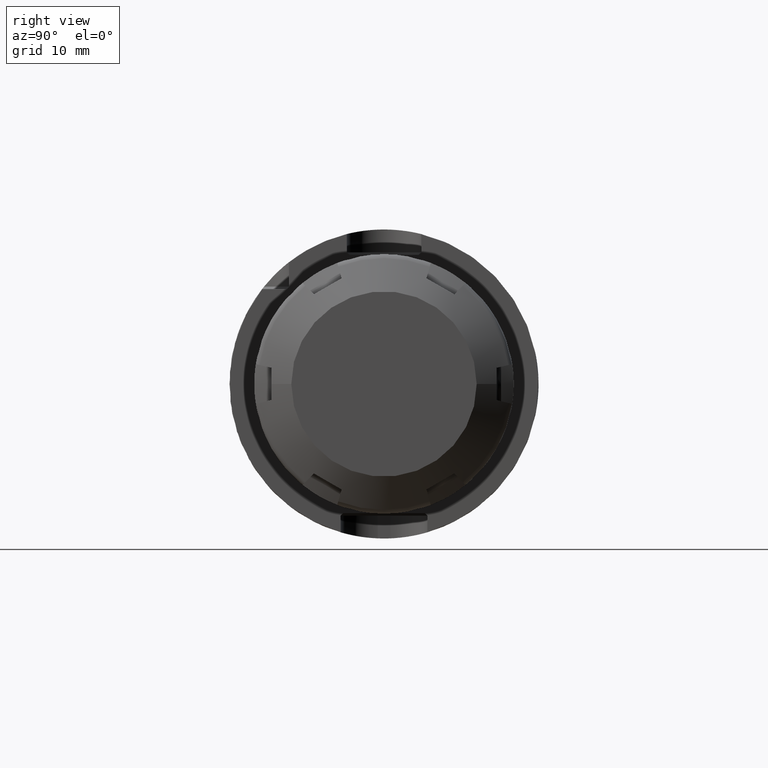
[diagram: clean part render]
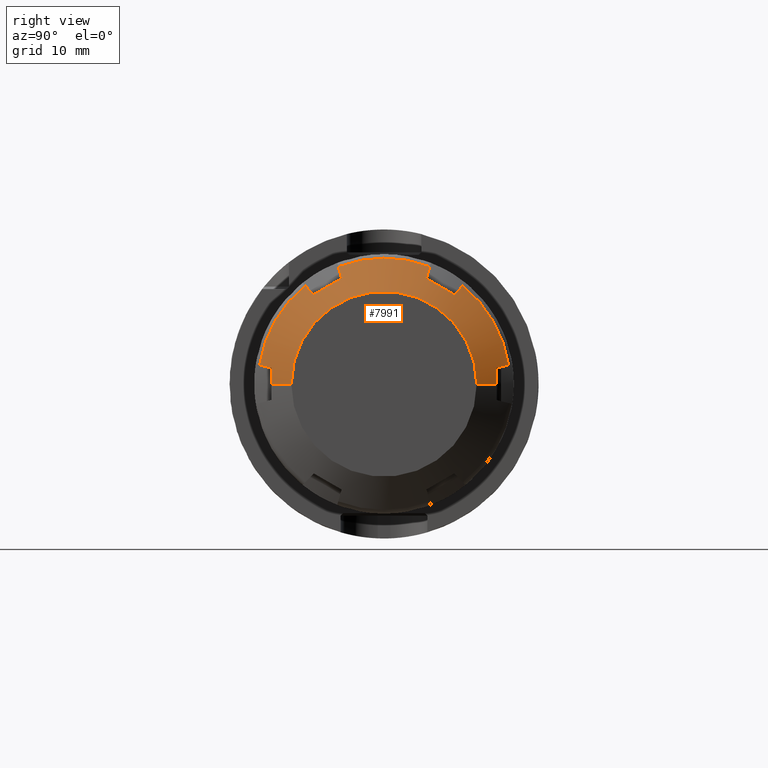
[diagram: same view with one face highlighted and labeled with its STEP entity id]
A machine part, right view. The second image highlights one B-rep face of the part: STEP entity #7991.
In plain terms, the highlighted conical surface has half-angle 60 deg.
Its self-contained STEP definition (entity closure, byte-faithful):
#6780=DIRECTION('',(-5.E-1,-8.660254037844E-1,0.E0));
#6781=VECTOR('',#6780,3.724539878802E0);
#6782=CARTESIAN_POINT('',(2.E1,-1.5E1,0.E0));
#6783=LINE('',#6782,#6781);
#6789=DIRECTION('',(-5.E-1,8.660254037844E-1,1.219275797742E-14));
#6790=VECTOR('',#6789,3.724539878802E0);
#6791=CARTESIAN_POINT('',(2.E1,1.5E1,0.E0));
#6792=LINE('',#6791,#6790);
#7034=CARTESIAN_POINT('',(1.689674230311E1,-2.014122163836E1,3.077631542997E0));
#7035=CARTESIAN_POINT('',(1.708907504526E1,-1.981659263641E1,2.996692442277E0));
#7036=CARTESIAN_POINT('',(1.747048804972E1,-1.917268684533E1,2.836148697367E0));
#7037=CARTESIAN_POINT('',(1.784538315893E1,-1.853947826048E1,2.678272065523E0));
#7038=CARTESIAN_POINT('',(1.803119743883E1,-1.822554615245E1,2.6E0));
#7040=CARTESIAN_POINT('',(1.689674230311E1,-1.915276904626E-14,0.E0));
#7041=DIRECTION('',(-1.E0,0.E0,0.E0));
#7042=DIRECTION('',(0.E0,-9.885262153796E-1,1.510494008833E-1));
#7043=AXIS2_PLACEMENT_3D('',#7040,#7041,#7042);
#7045=CARTESIAN_POINT('',(1.803119743883E1,-1.136443912607E1,1.448378596587E1));
#7046=CARTESIAN_POINT('',(1.784547076956E1,-1.158908480779E1,1.471641337916E1));
#7047=CARTESIAN_POINT('',(1.747066334160E1,-1.204230833280E1,1.518574007823E1));
#7048=CARTESIAN_POINT('',(1.708916272E1,-1.250340215670E1,1.566321671038E1));
#7049=CARTESIAN_POINT('',(1.689674230311E1,-1.273591791890E1,1.590399383057E1));
#7051=CARTESIAN_POINT('',(1.803119743883E1,-6.861107026386E0,1.708378596587E1));
#7052=CARTESIAN_POINT('',(1.807831826555E1,-7.361586372305E0,1.679483408078E1));
#7053=CARTESIAN_POINT('',(1.814168574823E1,-8.362425592320E0,1.621699928769E1));
#7054=CARTESIAN_POINT('',(1.814168449187E1,-9.863151221670E0,1.535055494160E1));
#7055=CARTESIAN_POINT('',(1.807831703246E1,-1.086397287704E1,1.477273028946E1));
#7056=CARTESIAN_POINT('',(1.803119743883E1,-1.136443912607E1,1.448378596587E1));
#7058=CARTESIAN_POINT('',(1.689674230311E1,-7.405303719456E0,1.898162537357E1));
#7059=CARTESIAN_POINT('',(1.708907504526E1,-7.313084535866E0,1.866001886072E1));
#7060=CARTESIAN_POINT('',(1.747048804972E1,-7.130166601835E0,1.802210821554E1));
#7061=CARTESIAN_POINT('',(1.784538315893E1,-6.950287483250E0,1.739479517924E1));
#7062=CARTESIAN_POINT('',(1.803119743883E1,-6.861107026386E0,1.708378596587E1));
#7064=CARTESIAN_POINT('',(1.689674230311E1,-1.915276904626E-14,0.E0));
#7065=DIRECTION('',(-1.E0,0.E0,0.E0));
#7066=DIRECTION('',(0.E0,-3.634504892985E-1,9.316135152673E-1));
#7067=AXIS2_PLACEMENT_3D('',#7064,#7065,#7066);
#7069=CARTESIAN_POINT('',(1.803119743883E1,6.861107026386E0,1.708378596587E1));
#7070=CARTESIAN_POINT('',(1.784547076956E1,6.950245435050E0,1.739464853974E1));
#7071=CARTESIAN_POINT('',(1.747066334160E1,7.130082516612E0,1.802181497552E1));
#7072=CARTESIAN_POINT('',(1.708916272E1,7.313042497819E0,1.865987225663E1));
#7073=CARTESIAN_POINT('',(1.689674230311E1,7.405303719456E0,1.898162537357E1));
#7075=CARTESIAN_POINT('',(1.803119743883E1,1.136443912607E1,1.448378596587E1));
#7076=CARTESIAN_POINT('',(1.807831826555E1,1.086395978015E1,1.477273785096E1));
#7077=CARTESIAN_POINT('',(1.814168574823E1,9.863120560131E0,1.535057264405E1));
#7078=CARTESIAN_POINT('',(1.814168449187E1,8.362394930781E0,1.621701699013E1));
#7079=CARTESIAN_POINT('',(1.807831703246E1,7.361573275411E0,1.679484164227E1));
#7080=CARTESIAN_POINT('',(1.803119743883E1,6.861107026386E0,1.708378596587E1));
#7082=CARTESIAN_POINT('',(1.689674230311E1,1.273591791890E1,1.590399383057E1));
#7083=CARTESIAN_POINT('',(1.708907504526E1,1.250350810055E1,1.566332641844E1));
#7084=CARTESIAN_POINT('',(1.747048804972E1,1.204252024350E1,1.518595951818E1));
#7085=CARTESIAN_POINT('',(1.784538315893E1,1.158919077723E1,1.471652311372E1));
#7086=CARTESIAN_POINT('',(1.803119743883E1,1.136443912607E1,1.448378596587E1));
#7088=CARTESIAN_POINT('',(1.689674230311E1,-1.915276904626E-14,0.E0));
#7089=DIRECTION('',(-1.E0,0.E0,0.E0));
#7090=DIRECTION('',(0.E0,6.250757260812E-1,7.805641143840E-1));
#7091=AXIS2_PLACEMENT_3D('',#7088,#7089,#7090);
#7093=CARTESIAN_POINT('',(1.803119743883E1,1.822554615245E1,2.6E0));
#7094=CARTESIAN_POINT('',(1.784547076956E1,1.853933024284E1,2.678235160582E0));
#7095=CARTESIAN_POINT('',(1.747066334160E1,1.917239084941E1,2.836074897296E0));
#7096=CARTESIAN_POINT('',(1.708916272E1,1.981644465452E1,2.996655546247E0));
#7097=CARTESIAN_POINT('',(1.689674230311E1,2.014122163836E1,3.077631542997E0));
#7099=CARTESIAN_POINT('',(1.813773006060E1,1.822554615245E1,
4.663706011864E-14));
#7100=CARTESIAN_POINT('',(1.813773006060E1,1.822554615245E1,2.889809035546E-1));
#7101=CARTESIAN_POINT('',(1.812978891864E1,1.822554615245E1,8.668802635554E-1));
#7102=CARTESIAN_POINT('',(1.809415446357E1,1.822554615245E1,1.733491685998E0));
#7103=CARTESIAN_POINT('',(1.805474752385E1,1.822554615245E1,2.311174784706E0));
#7104=CARTESIAN_POINT('',(1.803119743883E1,1.822554615245E1,2.6E0));
#7106=CARTESIAN_POINT('',(2.E1,-2.266909448450E-14,0.E0));
#7107=DIRECTION('',(1.E0,0.E0,0.E0));
#7108=DIRECTION('',(0.E0,1.E0,0.E0));
#7109=AXIS2_PLACEMENT_3D('',#7106,#7107,#7108);
#7111=CARTESIAN_POINT('',(1.803119743883E1,-1.822554615245E1,2.6E0));
#7112=CARTESIAN_POINT('',(1.805475075341E1,-1.822554615245E1,2.311135176476E0));
#7113=CARTESIAN_POINT('',(1.809415978675E1,-1.822554615245E1,1.733399257211E0));
#7114=CARTESIAN_POINT('',(1.812979067473E1,-1.822554615245E1,
8.668016124823E-1));
#7115=CARTESIAN_POINT('',(1.813773006060E1,-1.822554615245E1,
2.889472613190E-1));
#7116=CARTESIAN_POINT('',(1.813773006060E1,-1.822554615245E1,0.E0));
#7516=CARTESIAN_POINT('',(2.E1,1.5E1,0.E0));
#7517=CARTESIAN_POINT('',(2.E1,-1.5E1,0.E0));
#7518=VERTEX_POINT('',#7516);
#7519=VERTEX_POINT('',#7517);
#7528=VERTEX_POINT('',#7093);
#7529=VERTEX_POINT('',#7097);
#7530=VERTEX_POINT('',#7099);
#7545=VERTEX_POINT('',#7082);
#7546=VERTEX_POINT('',#7086);
#7547=VERTEX_POINT('',#7069);
#7548=VERTEX_POINT('',#7073);
#7559=VERTEX_POINT('',#7058);
#7560=VERTEX_POINT('',#7062);
#7561=VERTEX_POINT('',#7045);
#7562=VERTEX_POINT('',#7049);
#7573=VERTEX_POINT('',#7034);
#7574=VERTEX_POINT('',#7038);
#7575=VERTEX_POINT('',#7116);
#7961=CARTESIAN_POINT('',(1.844837115155E1,-2.091093176538E-14,0.E0));
#7962=DIRECTION('',(-1.E0,0.E0,0.E0));
#7963=DIRECTION('',(0.E0,1.E0,0.E0));
#7964=AXIS2_PLACEMENT_3D('',#7961,#7962,#7963);
#7965=CONICAL_SURFACE('',#7964,1.76875E1,6.E1);
#7967=ORIENTED_EDGE('',*,*,#7966,.F.);
#7968=ORIENTED_EDGE('',*,*,#7816,.T.);
#7970=ORIENTED_EDGE('',*,*,#7969,.F.);
#7972=ORIENTED_EDGE('',*,*,#7971,.F.);
#7974=ORIENTED_EDGE('',*,*,#7973,.F.);
#7975=ORIENTED_EDGE('',*,*,#7800,.T.);
#7976=ORIENTED_EDGE('',*,*,#7938,.F.);
#7977=ORIENTED_EDGE('',*,*,#7955,.F.);
#7978=ORIENTED_EDGE('',*,*,#7876,.F.);
#7979=ORIENTED_EDGE('',*,*,#7784,.T.);
#7981=ORIENTED_EDGE('',*,*,#7980,.F.);
#7983=ORIENTED_EDGE('',*,*,#7982,.F.);
#7984=ORIENTED_EDGE('',*,*,#7654,.F.);
#7985=ORIENTED_EDGE('',*,*,#7625,.T.);
#7986=ORIENTED_EDGE('',*,*,#7651,.T.);
#7988=ORIENTED_EDGE('',*,*,#7987,.F.);
#7989=EDGE_LOOP('',(#7967,#7968,#7970,#7972,#7974,#7975,#7976,#7977,#7978,#7979,
#7981,#7983,#7984,#7985,#7986,#7988));
#7990=FACE_OUTER_BOUND('',#7989,.F.);
#7991=ADVANCED_FACE('',(#7990),#7965,.T.);
#7039=B_SPLINE_CURVE_WITH_KNOTS('',3,(#7034,#7035,#7036,#7037,#7038),
.UNSPECIFIED.,.F.,.F.,(4,1,4),(0.E0,5.E-1,1.E0),.UNSPECIFIED.);
#7044=CIRCLE('',#7043,2.0375E1);
#7050=B_SPLINE_CURVE_WITH_KNOTS('',3,(#7045,#7046,#7047,#7048,#7049),
.UNSPECIFIED.,.F.,.F.,(4,1,4),(0.E0,5.E-1,1.E0),.UNSPECIFIED.);
#7057=B_SPLINE_CURVE_WITH_KNOTS('',3,(#7051,#7052,#7053,#7054,#7055,#7056),
.UNSPECIFIED.,.F.,.F.,(4,1,1,4),(0.E0,3.333333333333E-1,6.666666666667E-1,1.E0),
.UNSPECIFIED.);
#7063=B_SPLINE_CURVE_WITH_KNOTS('',3,(#7058,#7059,#7060,#7061,#7062),
.UNSPECIFIED.,.F.,.F.,(4,1,4),(0.E0,5.E-1,1.E0),.UNSPECIFIED.);
#7068=CIRCLE('',#7067,2.0375E1);
#7074=B_SPLINE_CURVE_WITH_KNOTS('',3,(#7069,#7070,#7071,#7072,#7073),
.UNSPECIFIED.,.F.,.F.,(4,1,4),(0.E0,5.E-1,1.E0),.UNSPECIFIED.);
#7081=B_SPLINE_CURVE_WITH_KNOTS('',3,(#7075,#7076,#7077,#7078,#7079,#7080),
.UNSPECIFIED.,.F.,.F.,(4,1,1,4),(0.E0,3.333333333333E-1,6.666666666667E-1,1.E0),
.UNSPECIFIED.);
#7087=B_SPLINE_CURVE_WITH_KNOTS('',3,(#7082,#7083,#7084,#7085,#7086),
.UNSPECIFIED.,.F.,.F.,(4,1,4),(0.E0,5.E-1,1.E0),.UNSPECIFIED.);
#7092=CIRCLE('',#7091,2.0375E1);
#7098=B_SPLINE_CURVE_WITH_KNOTS('',3,(#7093,#7094,#7095,#7096,#7097),
.UNSPECIFIED.,.F.,.F.,(4,1,4),(0.E0,5.E-1,1.E0),.UNSPECIFIED.);
#7105=B_SPLINE_CURVE_WITH_KNOTS('',3,(#7099,#7100,#7101,#7102,#7103,#7104),
.UNSPECIFIED.,.F.,.F.,(4,1,1,4),(0.E0,3.333333333333E-1,6.666666666667E-1,1.E0),
.UNSPECIFIED.);
#7110=CIRCLE('',#7109,1.5E1);
#7117=B_SPLINE_CURVE_WITH_KNOTS('',3,(#7111,#7112,#7113,#7114,#7115,#7116),
.UNSPECIFIED.,.F.,.F.,(4,1,1,4),(0.E0,3.333333333333E-1,6.666666666667E-1,1.E0),
.UNSPECIFIED.);
#7625=EDGE_CURVE('',#7518,#7519,#7110,.T.);
#7651=EDGE_CURVE('',#7519,#7575,#6783,.T.);
#7654=EDGE_CURVE('',#7518,#7530,#6792,.T.);
#7784=EDGE_CURVE('',#7545,#7529,#7092,.T.);
#7800=EDGE_CURVE('',#7559,#7548,#7068,.T.);
#7816=EDGE_CURVE('',#7573,#7562,#7044,.T.);
#7876=EDGE_CURVE('',#7545,#7546,#7087,.T.);
#7938=EDGE_CURVE('',#7547,#7548,#7074,.T.);
#7955=EDGE_CURVE('',#7546,#7547,#7081,.T.);
#7966=EDGE_CURVE('',#7573,#7574,#7039,.T.);
#7969=EDGE_CURVE('',#7561,#7562,#7050,.T.);
#7971=EDGE_CURVE('',#7560,#7561,#7057,.T.);
#7973=EDGE_CURVE('',#7559,#7560,#7063,.T.);
#7980=EDGE_CURVE('',#7528,#7529,#7098,.T.);
#7982=EDGE_CURVE('',#7530,#7528,#7105,.T.);
#7987=EDGE_CURVE('',#7574,#7575,#7117,.T.);